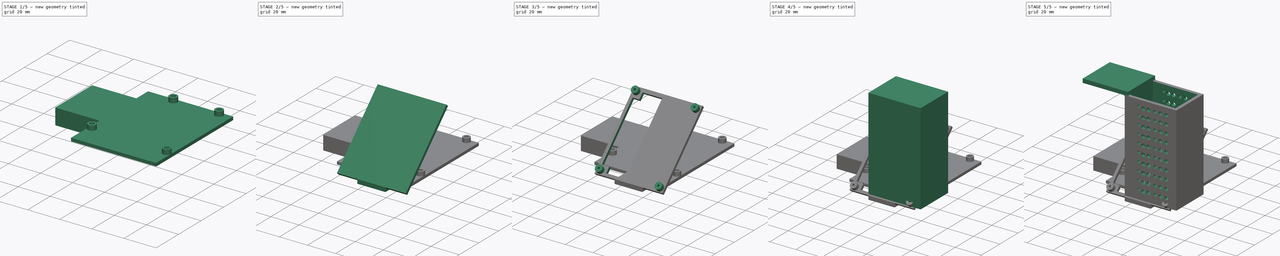
[diagram: build sequence overview — one tinted view per stage of 5, left to right]
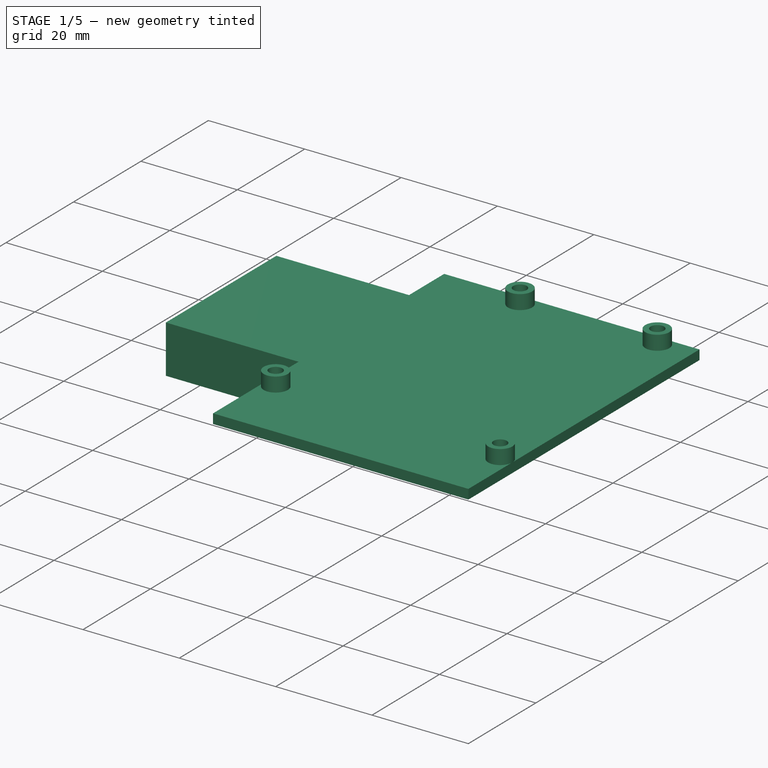
[diagram: stage 1 of 5 — iso view after this stage's code; geometry added in this stage tinted green]
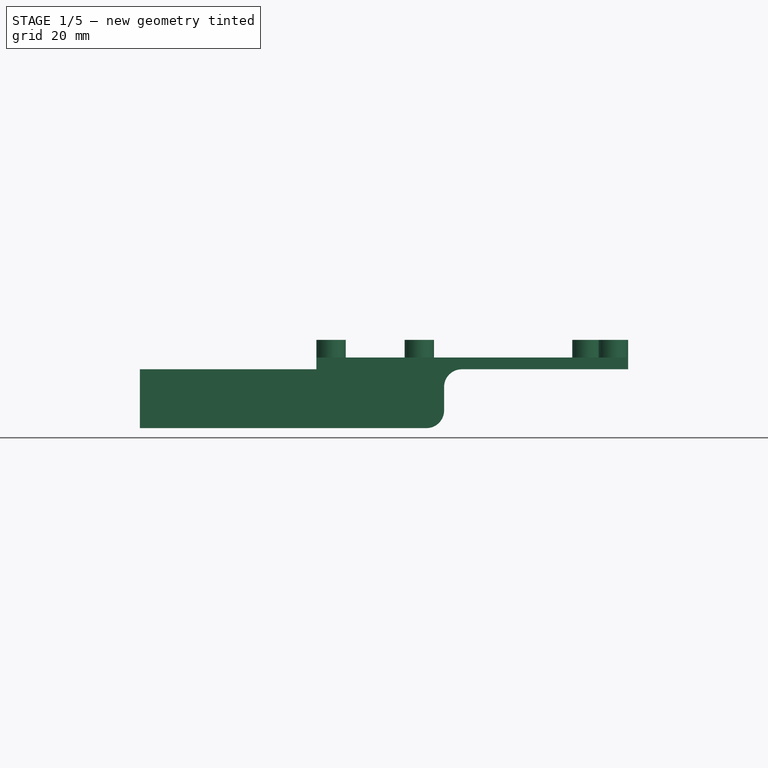
[diagram: stage 1 of 5 — front view after this stage's code; geometry added in this stage tinted green]
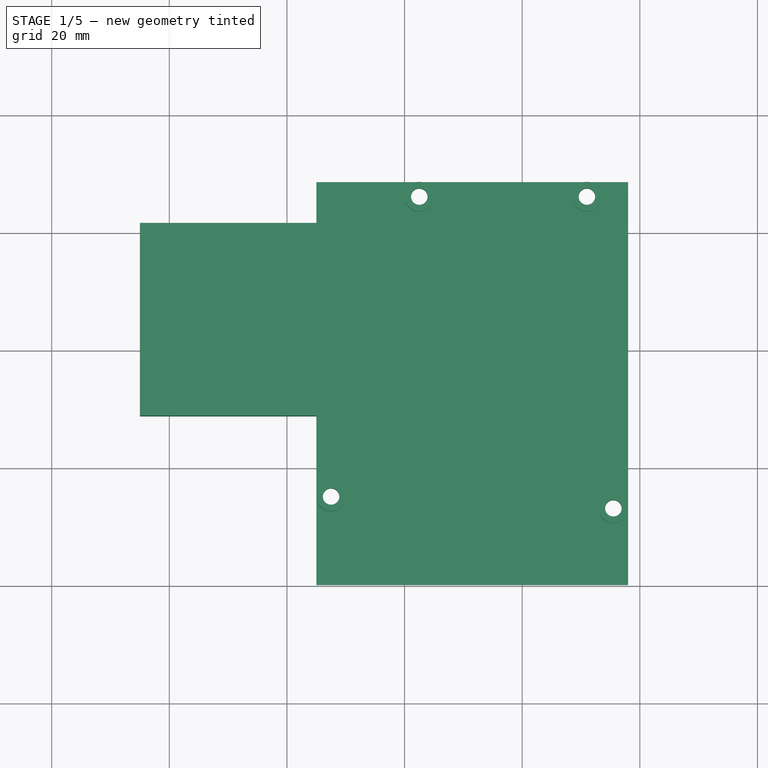
[diagram: stage 1 of 5 — top view after this stage's code; geometry added in this stage tinted green]
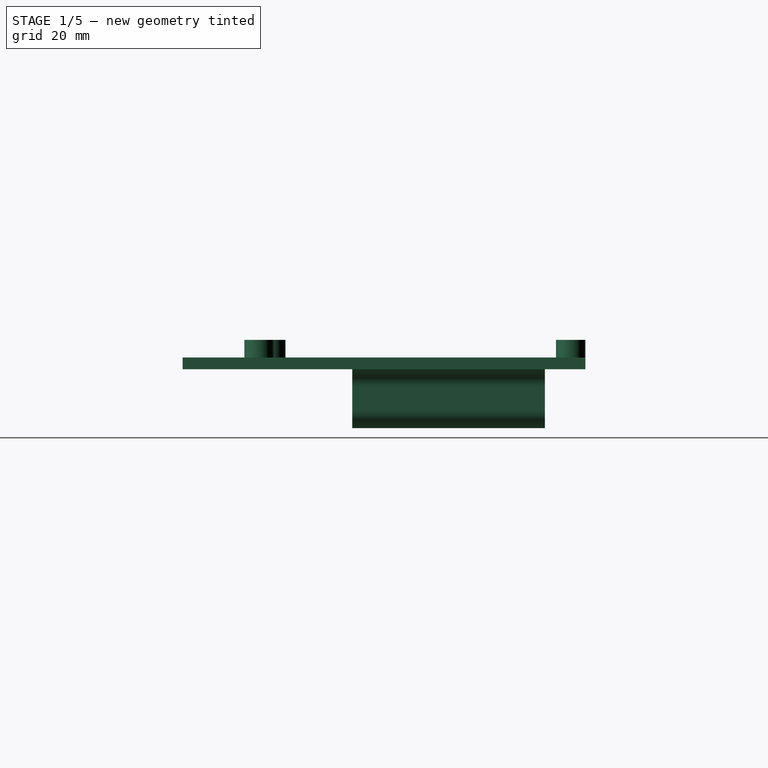
[diagram: stage 1 of 5 — right view after this stage's code; geometry added in this stage tinted green]
FCSTD DOCUMENT  (FreeCAD 1.0R39285 (Git))
Label: structure
License: All rights reserved
objects: Sketcher::SketchObject×17, PartDesign::Pad×10, PartDesign::Pocket×5, PartDesign::Fillet×5, PartDesign::Body×3, PartDesign::Plane×2, PartDesign::Mirrored×2, PartDesign::LinearPattern×1
note: 105 computed .brp shape members not serialized (recipe doc carries the construction recipe); baked Part::Feature solids carry a one-line shape summary decoded from their .brp

FEATURE [PartDesign::Body] Body001  label="escHolder"
  AllowCompound = false
  Group = -> [Sketch006,Pad003,Sketch007,DatumPlane,Sketch008,DatumPlane001,Pad004,Sketch009,Pad005,Fillet001,Sketch010,Pad006,Sketch011,Pocket002,Mirrored,Sketch012,Pocket003,Fillet002,Mirrored001]
  Origin = -> Origin001
  Placement = pos=(287,0,291) rot=(0,0,1;0rad)
  Tip = -> Mirrored001
FEATURE [Sketcher::SketchObject] Sketch014
  ArcFitTolerance = 1e-06
  AttachmentSupport = -> [XY_Plane]
  FullyConstrained = true
  MakeInternals = false
  MapMode = 5
  sketch-geometry (4):
    g0: LineSegment StartX=18 StartY=0 StartZ=0 EndX=18 EndY=68.5 EndZ=0
    g1: LineSegment StartX=18 StartY=68.5 StartZ=0 EndX=-35 EndY=68.5 EndZ=0
    g2: LineSegment StartX=-35 StartY=68.5 StartZ=0 EndX=-35 EndY=0 EndZ=0
    g3: LineSegment StartX=-35 StartY=0 StartZ=0 EndX=18 EndY=0 EndZ=0
  constraints (12):
    c: Coincident(g0,g1)
    c: Coincident(g1,g2)
    c: Coincident(g2,g3)
    c: Coincident(g3,g0)
    c: Vertical(g0)
    c: Vertical(g2)
    c: Horizontal(g1)
    c: Horizontal(g3)
    c: Distance(g0,g2) = 53
    c: Distance(g1,g3) = 68.5
    c: PointOnObject(g0,g-1)
    c: Distance(g2,g-3) = 15
FEATURE [PartDesign::Pad] Pad008
  Direction = (0,0,1)
  Length = 2
  Length2 = 10
  Profile = -> Sketch014
  ReferenceAxis = -> Sketch014 [N_Axis]
  Refine = true
  Suppressed = false
  Type = 0
FEATURE [Sketcher::SketchObject] Sketch015
  ArcFitTolerance = 1e-06
  AttachmentSupport = -> [Pad008]
  FullyConstrained = true
  MakeInternals = false
  MapMode = 5
  Placement = pos=(0,0,2) rot=(0,0,1;0rad)
  sketch-geometry (8):
    g0: GeomPoint X=15.5 Y=13 Z=0
    g1: GeomPoint X=-32.5 Y=15 Z=0
    g2: GeomPoint X=11 Y=66 Z=0
    g3: GeomPoint X=-17.5 Y=66 Z=0
    g4: Circle CenterX=-32.5 CenterY=15 CenterZ=0 NormalX=0 NormalY=0 NormalZ=1 AngleXU=0 Radius=2.5
    g5: Circle CenterX=-17.5 CenterY=66 CenterZ=0 NormalX=0 NormalY=0 NormalZ=1 AngleXU=0 Radius=2.5
    g6: Circle CenterX=11 CenterY=66 CenterZ=0 NormalX=0 NormalY=0 NormalZ=1 AngleXU=0 Radius=2.5
    g7: Circle CenterX=15.5 CenterY=13 CenterZ=0 NormalX=0 NormalY=0 NormalZ=1 AngleXU=0 Radius=2.5
  constraints (16):
    c: Distance(g0,g-5) = 13
    c: Distance(g0,g-3) = 2.5
    c: Distance(g1,g-5) = 15
    c: Distance(g1,g-4) = 2.5
    c: Distance(g2,g-3) = 7
    c: Distance(g2,g-6) = 2.5
    c: Distance(g3,g-6) = 2.5
    c: Distance(g3,g-4) = 17.5
    c: Coincident(g4,g1)
    c: Diameter(g4) = 5
    c: Coincident(g5,g3)
    c: Coincident(g6,g2)
    c: Coincident(g7,g0)
    c: Equal(g4,g5)
    c: Equal(g5,g6)
    c: Equal(g6,g7)
FEATURE [PartDesign::Pad] Pad009
  BaseFeature = -> Pad008
  Direction = (0,0,1)
  Length = 3
  Length2 = 10
  Profile = -> Sketch015
  ReferenceAxis = -> Sketch015 [N_Axis]
  Refine = true
  Suppressed = false
  Type = 0
FEATURE [Sketcher::SketchObject] Sketch016
  ArcFitTolerance = 1e-06
  AttachmentSupport = -> [Pad009]
  ExternalGeometry = -> [Pad009]
  FullyConstrained = true
  MakeInternals = false
  MapMode = 5
  Placement = pos=(0,0,5) rot=(0,0,1;0rad)
  sketch-geometry (4):
    g0: Circle CenterX=-32.5 CenterY=15 CenterZ=0 NormalX=0 NormalY=0 NormalZ=1 AngleXU=0 Radius=1.4
    g1: Circle CenterX=15.5 CenterY=13 CenterZ=0 NormalX=0 NormalY=0 NormalZ=1 AngleXU=0 Radius=1.4
    g2: Circle CenterX=11 CenterY=66 CenterZ=0 NormalX=0 NormalY=0 NormalZ=1 AngleXU=0 Radius=1.4
    g3: Circle CenterX=-17.5 CenterY=66 CenterZ=0 NormalX=0 NormalY=0 NormalZ=1 AngleXU=0 Radius=1.4
  constraints (8):
    c: Diameter(g0) = 2.8
    c: Coincident(g0,g-6)
    c: Coincident(g1,g-3)
    c: Coincident(g2,g-4)
    c: Coincident(g3,g-5)
    c: Equal(g0,g1)
    c: Equal(g1,g2)
    c: Equal(g2,g3)
FEATURE [PartDesign::Pocket] Pocket004
  BaseFeature = -> Pad009
  Direction = (0,0,-1)
  Length = 5
  Length2 = 5
  Profile = -> Sketch016
  ReferenceAxis = -> Sketch016 [N_Axis]
  Refine = true
  Suppressed = false
  Type = 1
FEATURE [Sketcher::SketchObject] Sketch017
  ArcFitTolerance = 1e-06
  AttachmentSupport = -> [Pocket004]
  ExternalGeometry = -> [Pocket004]
  FullyConstrained = false
  MakeInternals = false
  MapMode = 5
  Placement = pos=(0,0,0) rot=(1,0,0;3.14159rad)
  sketch-geometry (4):
    g0: LineSegment StartX=-65 StartY=-28.8527 StartZ=0 EndX=-65 EndY=-61.6023 EndZ=0
    g1: LineSegment StartX=-65 StartY=-61.6023 StartZ=0 EndX=-13.2809 EndY=-61.6023 EndZ=0
    g2: LineSegment StartX=-13.2809 StartY=-61.6023 StartZ=0 EndX=-13.2809 EndY=-28.8527 EndZ=0
    g3: LineSegment StartX=-13.2809 StartY=-28.8527 StartZ=0 EndX=-65 EndY=-28.8527 EndZ=0
  constraints (9):
    c: Coincident(g0,g1)
    c: Coincident(g1,g2)
    c: Coincident(g2,g3)
    c: Coincident(g3,g0)
    c: Vertical(g0)
    c: Vertical(g2)
    c: Horizontal(g1)
    c: Horizontal(g3)
    c: Distance(g0,g-5) = 30
FEATURE [PartDesign::Pad] Pad010
  BaseFeature = -> Pocket004
  Direction = (0,0,-1)
  Length = 10
  Length2 = 10
  Profile = -> Sketch017
  ReferenceAxis = -> Sketch017 [N_Axis]
  Refine = true
  Suppressed = false
  Type = 0
FEATURE [PartDesign::Fillet] Fillet003
  Base = -> Pad010 [Edge16,Edge38]
  BaseFeature = -> Pad010
  Radius = 3
  Refine = true
  SupportTransform = false
  Suppressed = false
  UseAllEdges = false
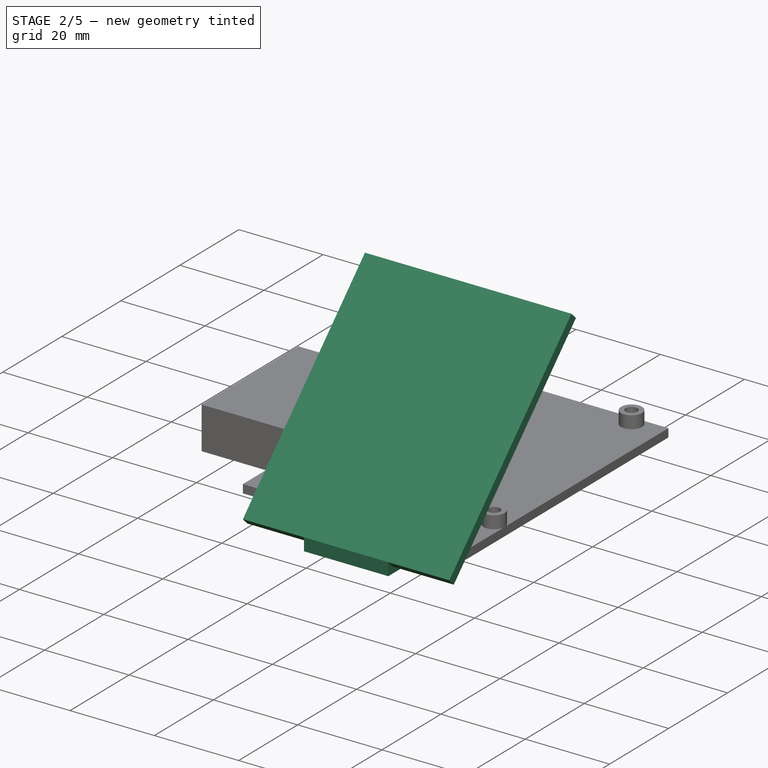
[diagram: stage 2 of 5 — iso view after this stage's code; geometry added in this stage tinted green]
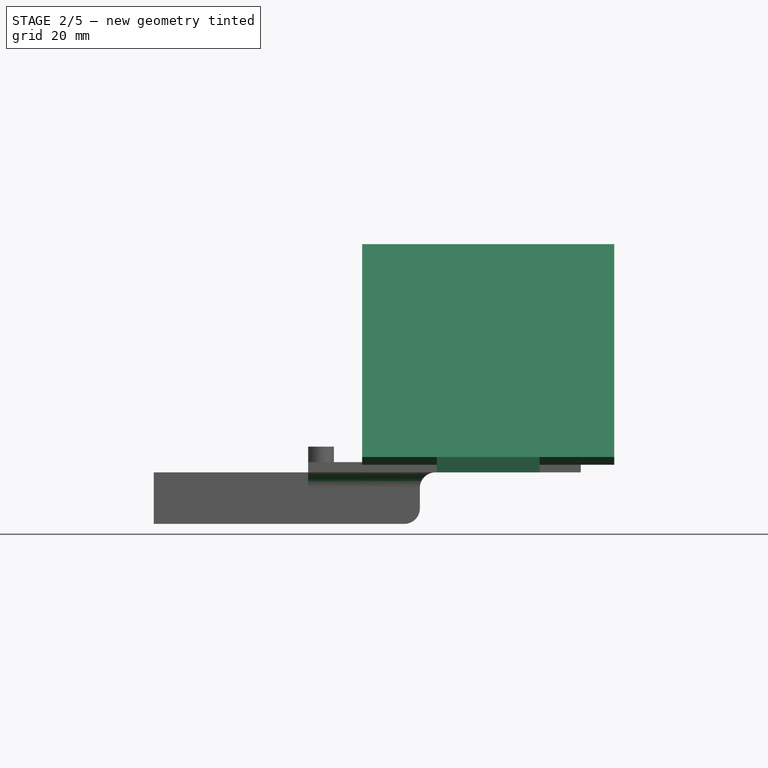
[diagram: stage 2 of 5 — front view after this stage's code; geometry added in this stage tinted green]
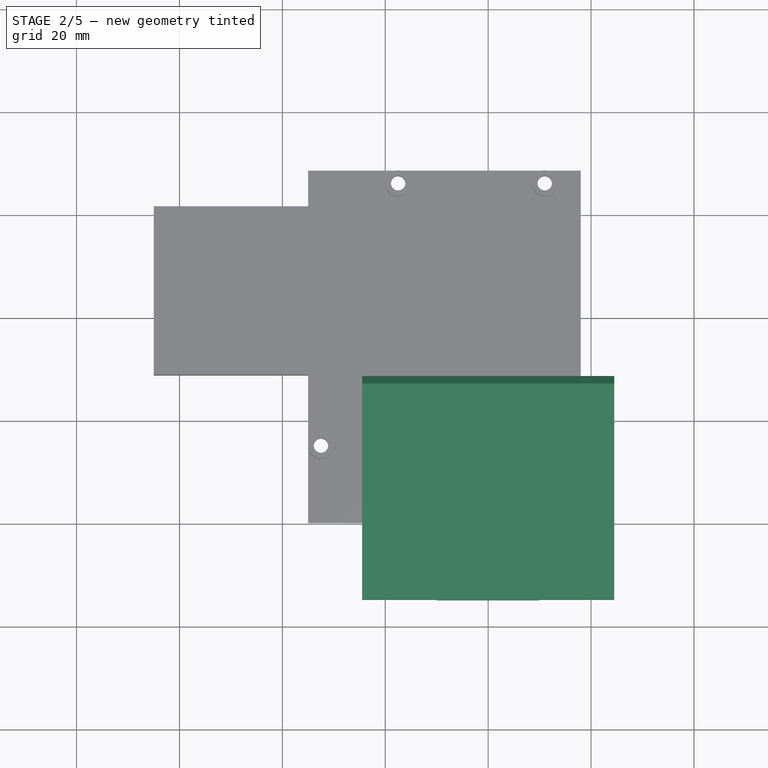
[diagram: stage 2 of 5 — top view after this stage's code; geometry added in this stage tinted green]
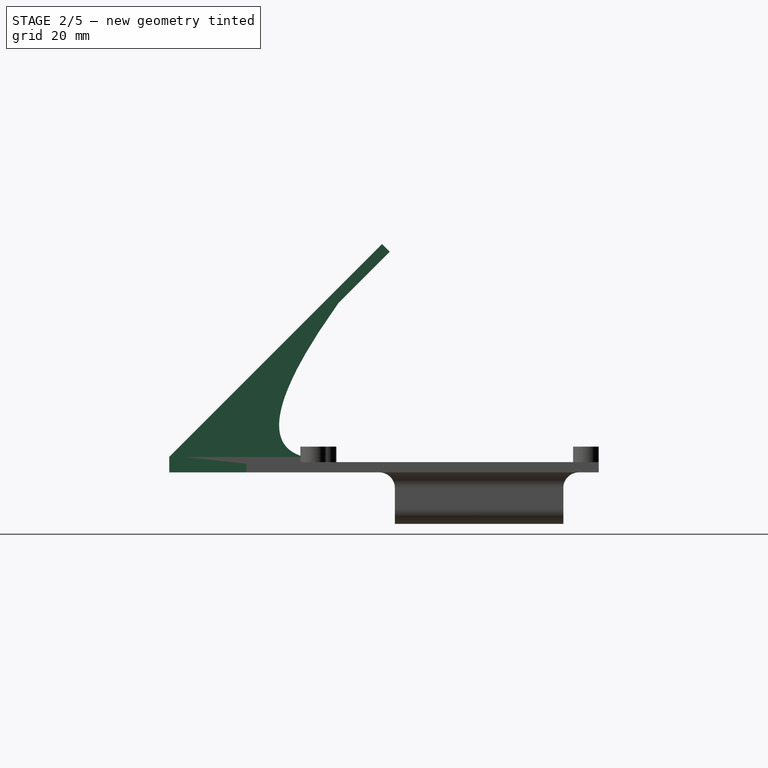
[diagram: stage 2 of 5 — right view after this stage's code; geometry added in this stage tinted green]
FEATURE [PartDesign::Body] Body  label="batteryCage"
  AllowCompound = false
  Group = -> [Sketch,Pad,Sketch001,Pad001,Sketch002,Pocket,Sketch003,Pad002,Fillet,Sketch004,Pocket001,Sketch005,LinearPattern]
  Origin = -> Origin
  Tip = -> LinearPattern
FEATURE [Sketcher::SketchObject] Sketch006
  ArcFitTolerance = 1e-06
  AttachmentSupport = -> [XY_Plane001]
  FullyConstrained = true
  MakeInternals = false
  MapMode = 5
  sketch-geometry (5):
    g0: LineSegment StartX=-10 StartY=-15 StartZ=0 EndX=10 EndY=-15 EndZ=0
    g1: LineSegment StartX=10 StartY=-15 StartZ=0 EndX=10 EndY=15 EndZ=0
    g2: LineSegment StartX=10 StartY=15 StartZ=0 EndX=-10 EndY=15 EndZ=0
    g3: LineSegment StartX=-10 StartY=15 StartZ=0 EndX=-10 EndY=-15 EndZ=0
    g4: GeomPoint [constr] X=0 Y=0 Z=0
  constraints (12):
    c: Coincident(g0,g1)
    c: Coincident(g1,g2)
    c: Coincident(g2,g3)
    c: Coincident(g3,g0)
    c: Horizontal(g0)
    c: Horizontal(g2)
    c: Vertical(g1)
    c: Vertical(g3)
    c: Symmetric(g2,g0,g4)
    c: Distance(g1,g3) = 20
    c: Distance(g0,g2) = 30
    c: Coincident(g4,g-1)
FEATURE [PartDesign::Pad] Pad003
  Direction = (0,0,1)
  Length = 3
  Length2 = 10
  Profile = -> Sketch006
  ReferenceAxis = -> Sketch006 [N_Axis]
  Refine = true
  Suppressed = false
  Type = 0
FEATURE [Sketcher::SketchObject] Sketch007
  ArcFitTolerance = 1e-06
  AttachmentSupport = -> [Pad003]
  ExternalGeometry = -> [Pad003]
  FullyConstrained = true
  MakeInternals = false
  MapMode = 5
  Placement = pos=(0,0,3) rot=(0,0,1;0rad)
  sketch-geometry (1):
    g0: LineSegment StartX=-10 StartY=-12 StartZ=0 EndX=10 EndY=-12 EndZ=0
  constraints (4):
    c: PointOnObject(g0,g-3)
    c: PointOnObject(g0,g-4)
    c: Horizontal(g0)
    c: Distance(g-5,g0) = 3
FEATURE [PartDesign::Plane] DatumPlane
  AttachmentSupport = -> [Pad003,Sketch007]
  Length = 63.2417
  MapMode = 13
  Placement = pos=(-3.33333,-14,1) rot=(1,0,0;0.785398rad)
  ResizeMode = 0
  Width = 100.913
FEATURE [Sketcher::SketchObject] Sketch008
  ArcFitTolerance = 1e-06
  AttachmentSupport = -> [DatumPlane]
  ExternalGeometry = -> [Pad003]
  FullyConstrained = true
  MakeInternals = false
  MapMode = 5
  Placement = pos=(-3.33333,-14,1) rot=(1,0,0;0.785398rad)
  sketch-geometry (4):
    g0: LineSegment StartX=-21.1667 StartY=0.707107 StartZ=0 EndX=27.8333 EndY=0.707107 EndZ=0
    g1: LineSegment StartX=27.8333 StartY=0.707107 StartZ=0 EndX=27.8333 EndY=59.2071 EndZ=0
    g2: LineSegment StartX=27.8333 StartY=59.2071 StartZ=0 EndX=-21.1667 EndY=59.2071 EndZ=0
    g3: LineSegment StartX=-21.1667 StartY=59.2071 StartZ=0 EndX=-21.1667 EndY=0.707107 EndZ=0
  constraints (12):
    c: Coincident(g0,g1)
    c: Coincident(g1,g2)
    c: Coincident(g2,g3)
    c: Coincident(g3,g0)
    c: Horizontal(g0)
    c: Horizontal(g2)
    c: Vertical(g1)
    c: Vertical(g3)
    c: Distance(g1,g3) = 49
    c: Distance(g0,g2) = 58.5
    c: PointOnObject(g-3,g0)
    c: Distance(g0,g-3) = 14.5
FEATURE [PartDesign::Plane] DatumPlane001
  AttachmentSupport = -> [DatumPlane,Pad003]
  Length = 63.2417
  MapMode = 53
  Placement = pos=(-3.33333,-15.5,2.5) rot=(1,0,0;0.785398rad)
  ResizeMode = 0
  Width = 100.913
FEATURE [PartDesign::Pad] Pad004
  BaseFeature = -> Pad003
  Direction = (0,-0.707107,0.707107)
  Length = 10
  Length2 = 10
  Profile = -> Sketch008
  ReferenceAxis = -> Sketch008 [N_Axis]
  Refine = true
  Suppressed = false
  Type = 3
  UpToFace = -> DatumPlane001 [Plane]
FEATURE [Sketcher::SketchObject] Sketch009
  ArcFitTolerance = 1e-06
  AttachmentSupport = -> [YZ_Plane001]
  ExternalGeometry = -> [DatumPlane,Pad004]
  FullyConstrained = true
  MakeInternals = false
  MapMode = 5
  Placement = pos=(0,0,0) rot=(0.57735,0.57735,0.57735;2.0944rad)
  sketch-geometry (8):
    g0: LineSegment StartX=-12 StartY=3 StartZ=0 EndX=11.34 EndY=3 EndZ=0
    g1: LineSegment StartX=-12 StartY=3 StartZ=0 EndX=17.847 EndY=32.847 EndZ=0
    g2: Circle [constr] CenterX=17.847 CenterY=32.847 CenterZ=0 NormalX=0 NormalY=0 NormalZ=1 AngleXU=0 Radius=1
    g3: Circle [constr] CenterX=-1.19 CenterY=6.11 CenterZ=0 NormalX=0 NormalY=0 NormalZ=1 AngleXU=0 Radius=1
    g4: Circle [constr] CenterX=11.34 CenterY=3 CenterZ=0 NormalX=0 NormalY=0 NormalZ=1 AngleXU=0 Radius=1
    g5: BSplineCurve PolesCount=3 KnotsCount=2 Degree=2 IsPeriodic=0
    g6: GeomPoint [constr] X=17.847 Y=32.847 Z=0
    g7: GeomPoint [constr] X=11.34 Y=3 Z=0
  constraints (18):
    c: Horizontal(g0)
    c: Coincident(g1,g0)
    c: PointOnObject(g1,g-3)
    c: Coincident(g0,g-4)
    c: Weight(g2) = 1
    c: Equal(g2,g3)
    c: Equal(g2,g4)
    c: InternalAlignment(g2,g5)
    c: InternalAlignment(g3,g5)
    c: InternalAlignment(g4,g5)
    c: InternalAlignment(g6,g5)
    c: InternalAlignment(g7,g5)
    c: Coincident(g2,g1)
    c: Coincident(g4,g0)
    c: DistanceX(g0,g0) = 23.34
    c: Distance(g1,g1) = 42.21
    c: DistanceX(g0,g3) = 10.81
    c: DistanceY(g0,g3) = 3.11
FEATURE [PartDesign::Pad] Pad005
  BaseFeature = -> Pad004
  Direction = (1,0,0)
  Length = 2
  Length2 = 10
  Midplane = true
  Profile = -> Sketch009
  ReferenceAxis = -> Sketch009 [N_Axis]
  Refine = true
  Suppressed = false
  Type = 0
FEATURE [PartDesign::Fillet] Fillet004
  Base = -> Fillet003 [Edge7,Edge2]
  BaseFeature = -> Fillet003
  Radius = 3
  Refine = true
  SupportTransform = false
  Suppressed = false
  UseAllEdges = false
FEATURE [PartDesign::Body] Body002  label="arduinoSupport"
  AllowCompound = false
  Group = -> [Sketch014,Pad008,Sketch015,Pad009,Sketch016,Pocket004,Sketch017,Pad010,Fillet003,Fillet004]
  Origin = -> Origin002
  Placement = pos=(0,98,-109) rot=(0,0,1;0rad)
  Tip = -> Fillet004
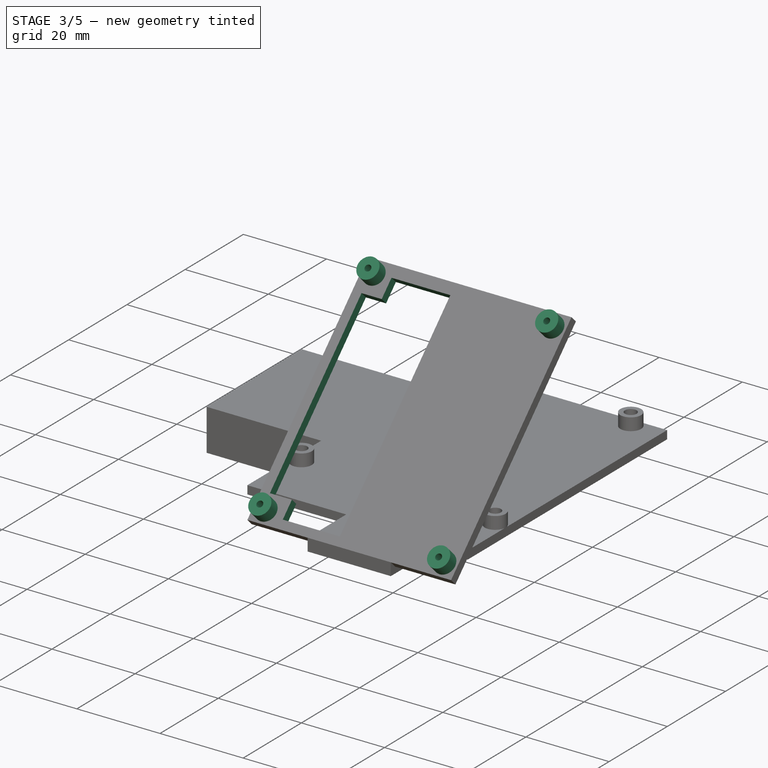
[diagram: stage 3 of 5 — iso view after this stage's code; geometry added in this stage tinted green]
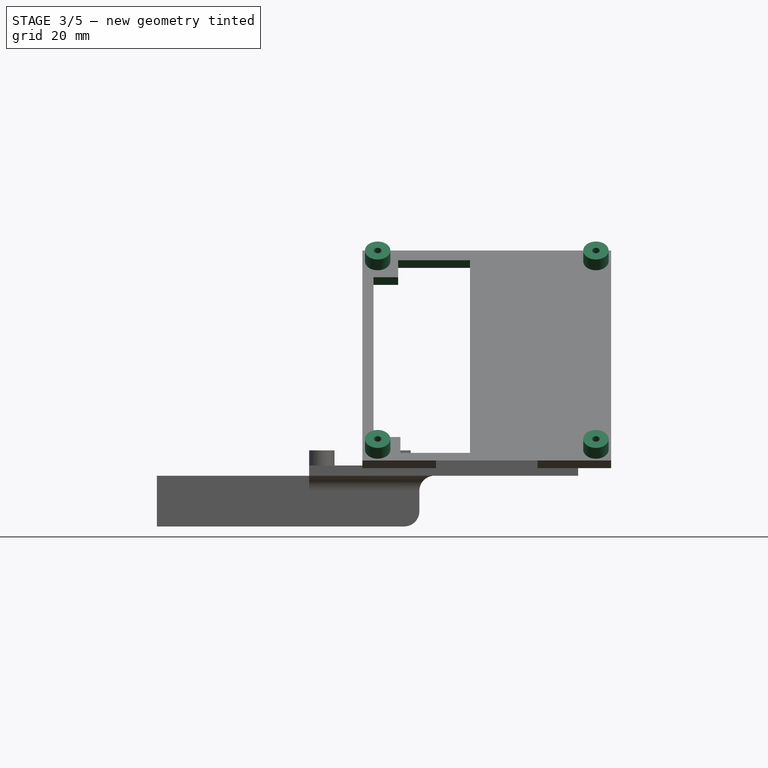
[diagram: stage 3 of 5 — front view after this stage's code; geometry added in this stage tinted green]
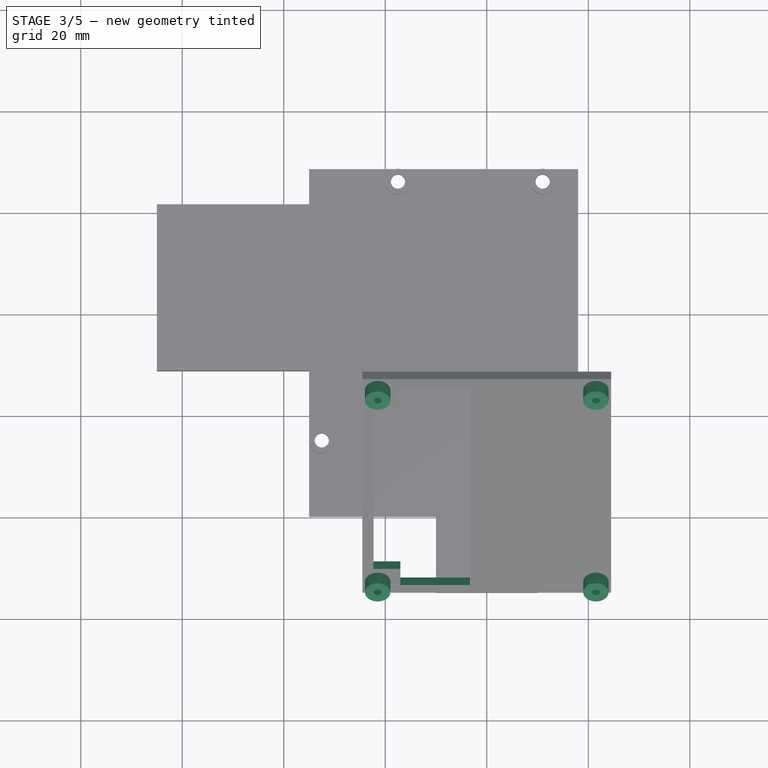
[diagram: stage 3 of 5 — top view after this stage's code; geometry added in this stage tinted green]
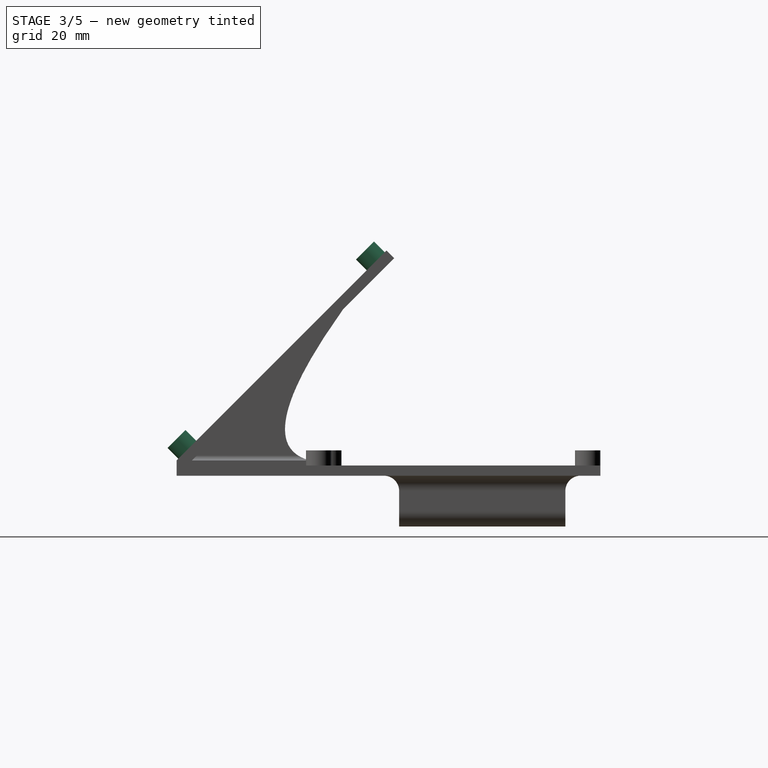
[diagram: stage 3 of 5 — right view after this stage's code; geometry added in this stage tinted green]
FEATURE [PartDesign::Fillet] Fillet001
  Base = -> Pad005 [Edge35,Edge33]
  BaseFeature = -> Pad005
  Radius = 1
  Refine = true
  SupportTransform = false
  Suppressed = false
  UseAllEdges = false
FEATURE [Sketcher::SketchObject] Sketch010
  ArcFitTolerance = 1e-06
  AttachmentSupport = -> [Fillet001]
  ExternalGeometry = -> [Fillet001]
  FullyConstrained = true
  MakeInternals = false
  MapMode = 5
  Placement = pos=(0,-9,9) rot=(1,0,0;0.785398rad)
  sketch-geometry (4):
    g0: GeomPoint X=-21.5 Y=-5.48528 Z=0
    g1: Circle CenterX=-21.5 CenterY=-5.48528 CenterZ=0 NormalX=0 NormalY=0 NormalZ=1 AngleXU=0 Radius=2.5
    g2: GeomPoint X=-21.5 Y=47.0147 Z=0
    g3: Circle CenterX=-21.5 CenterY=47.0147 CenterZ=0 NormalX=0 NormalY=0 NormalZ=1 AngleXU=0 Radius=2.5
  constraints (8):
    c: Distance(g0,g-6) = 3
    c: Distance(g0,g-4) = 3
    c: Diameter(g1) = 5
    c: Coincident(g1,g0)
    c: Distance(g2,g-3) = 3
    c: Distance(g2,g-4) = 3
    c: Diameter(g3) = 5
    c: Coincident(g3,g2)
FEATURE [PartDesign::Pad] Pad006
  BaseFeature = -> Fillet001
  Direction = (0,-0.707107,0.707107)
  Length = 3
  Length2 = 10
  Profile = -> Sketch010
  ReferenceAxis = -> Sketch010 [N_Axis]
  Refine = true
  Suppressed = false
  Type = 0
FEATURE [Sketcher::SketchObject] Sketch011
  ArcFitTolerance = 1e-06
  AttachmentSupport = -> [Pad006]
  ExternalGeometry = -> [Pad006]
  FullyConstrained = true
  MakeInternals = false
  MapMode = 5
  Placement = pos=(-1.26e-14,-11.1213,11.1213) rot=(1,0,0;0.785398rad)
  sketch-geometry (2):
    g0: Circle CenterX=-21.5 CenterY=-5.48528 CenterZ=0 NormalX=0 NormalY=0 NormalZ=1 AngleXU=0 Radius=0.75
    g1: Circle CenterX=-21.5 CenterY=47.0147 CenterZ=0 NormalX=0 NormalY=0 NormalZ=1 AngleXU=0 Radius=0.75
  constraints (4):
    c: Coincident(g0,g-3)
    c: Diameter(g0) = 1.5
    c: Diameter(g1) = 1.5
    c: Coincident(g1,g-4)
FEATURE [PartDesign::Pocket] Pocket002
  BaseFeature = -> Pad006
  Direction = (0,0.707107,-0.707107)
  Length = 5
  Length2 = 5
  Profile = -> Sketch011
  ReferenceAxis = -> Sketch011 [N_Axis]
  Refine = true
  Suppressed = false
  Type = 1
FEATURE [PartDesign::Mirrored] Mirrored
  BaseFeature = -> Pocket002
  MirrorPlane = -> Sketch010 [V_Axis]
  Originals = -> [Pad006,Pocket002]
  Refine = true
  Suppressed = false
  TransformMode = 0
FEATURE [Sketcher::SketchObject] Sketch012
  ArcFitTolerance = 1e-06
  AttachmentSupport = -> [Mirrored]
  FullyConstrained = false
  MakeInternals = false
  MapMode = 5
  Placement = pos=(0,-9,9) rot=(1,0,0;0.785398rad)
  sketch-geometry (8):
    g0: LineSegment StartX=-3.30589 StartY=47.3093 StartZ=0 EndX=-3.30589 EndY=-6.37289 EndZ=0
    g1: LineSegment StartX=-3.30589 StartY=-6.37289 StartZ=0 EndX=-17.0235 EndY=-6.37289 EndZ=0
    g2: LineSegment StartX=-17.0235 StartY=-6.37289 StartZ=0 EndX=-17.0235 EndY=-1.94438 EndZ=0
    g3: LineSegment StartX=-17.0235 StartY=-1.94438 StartZ=0 EndX=-22.3161 EndY=-1.94438 EndZ=0
    g4: LineSegment StartX=-22.3161 StartY=-1.94438 StartZ=0 EndX=-22.3161 EndY=42.5568 EndZ=0
    g5: LineSegment StartX=-22.3161 StartY=42.5568 StartZ=0 EndX=-17.4555 EndY=42.5568 EndZ=0
    g6: LineSegment StartX=-17.4555 StartY=42.5568 StartZ=0 EndX=-17.4555 EndY=47.3093 EndZ=0
    g7: LineSegment StartX=-17.4555 StartY=47.3093 StartZ=0 EndX=-3.30589 EndY=47.3093 EndZ=0
  constraints (16):
    c: Vertical(g0)
    c: Coincident(g0,g1)
    c: Horizontal(g1)
    c: Coincident(g1,g2)
    c: Vertical(g2)
    c: Coincident(g2,g3)
    c: Horizontal(g3)
    c: Coincident(g3,g4)
    c: Vertical(g4)
    c: Coincident(g4,g5)
    c: Horizontal(g5)
    c: Coincident(g5,g6)
    c: Vertical(g6)
    c: Coincident(g6,g7)
    c: Coincident(g7,g0)
    c: Horizontal(g7)
FEATURE [PartDesign::Pocket] Pocket003
  BaseFeature = -> Mirrored
  Direction = (0,0.707107,-0.707107)
  Length = 5
  Length2 = 5
  Profile = -> Sketch012
  ReferenceAxis = -> Sketch012 [N_Axis]
  Refine = true
  Suppressed = false
  Type = 2
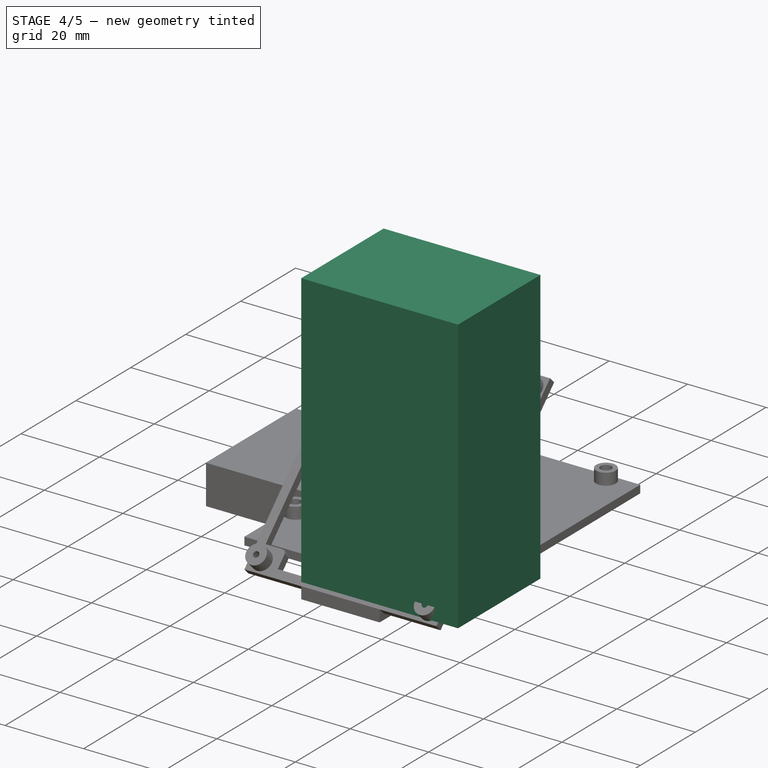
[diagram: stage 4 of 5 — iso view after this stage's code; geometry added in this stage tinted green]
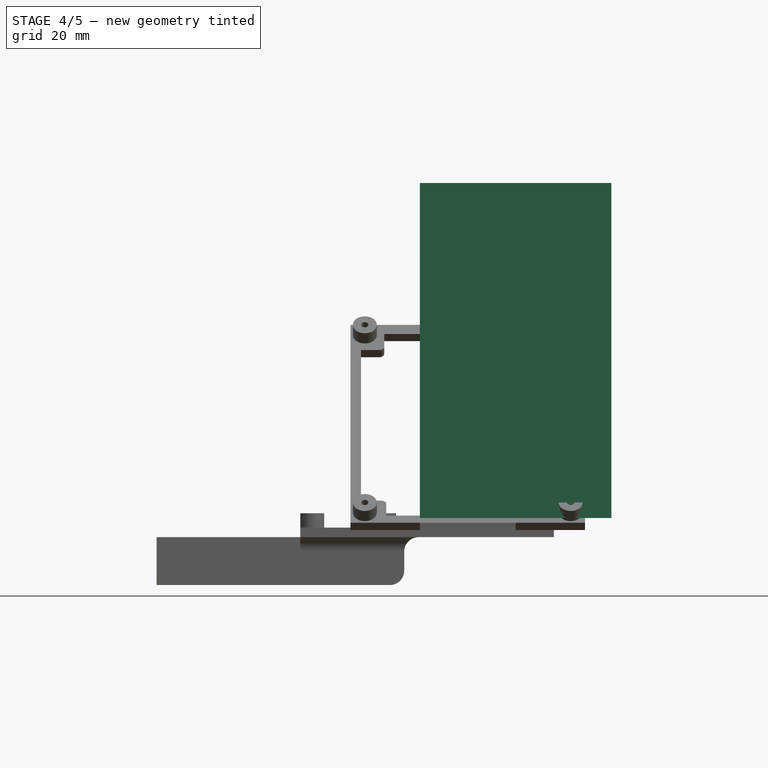
[diagram: stage 4 of 5 — front view after this stage's code; geometry added in this stage tinted green]
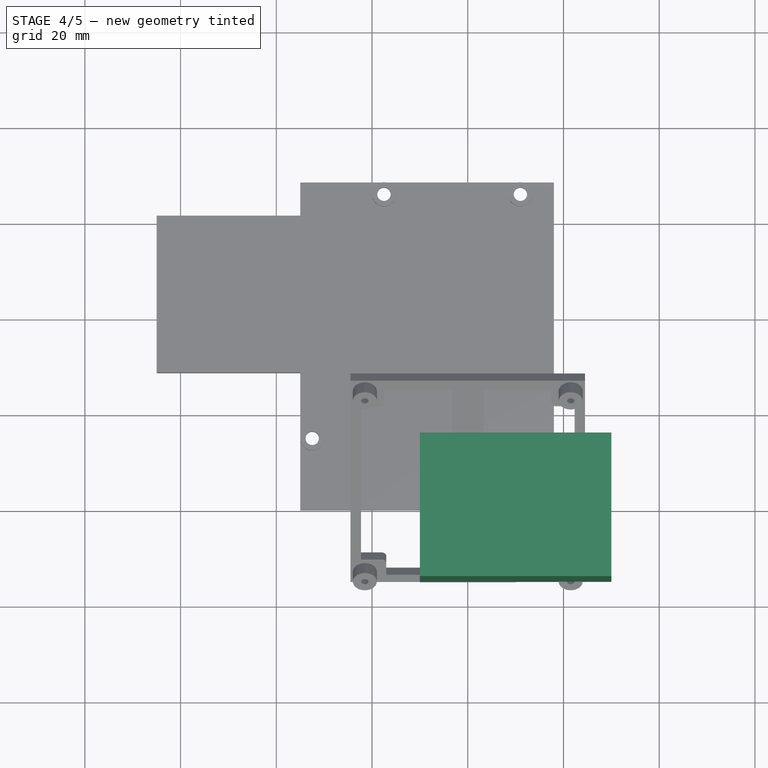
[diagram: stage 4 of 5 — top view after this stage's code; geometry added in this stage tinted green]
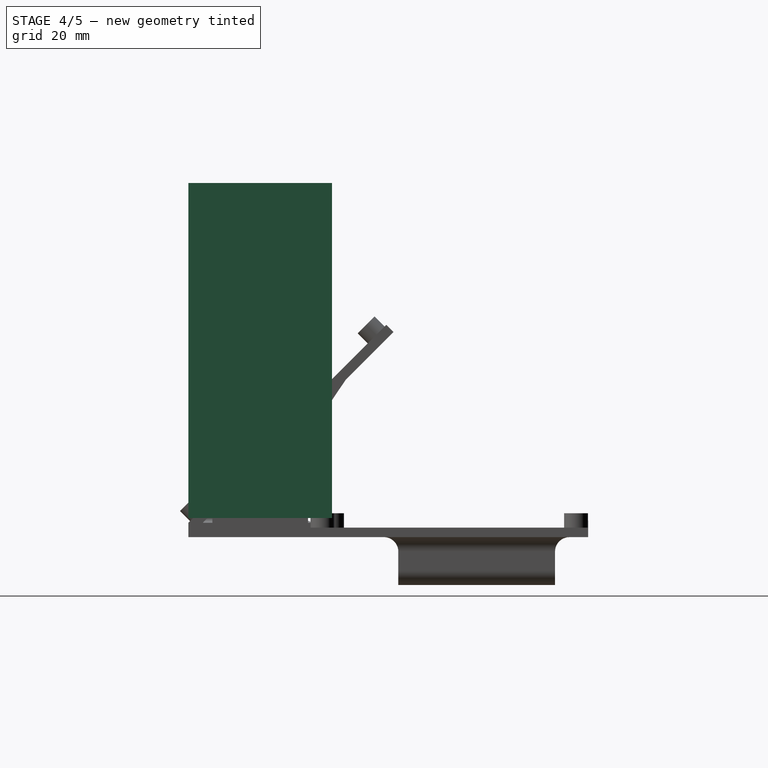
[diagram: stage 4 of 5 — right view after this stage's code; geometry added in this stage tinted green]
FEATURE [Sketcher::SketchObject] Sketch
  ArcFitTolerance = 1e-06
  AttachmentSupport = -> [XY_Plane]
  FullyConstrained = true
  MakeInternals = false
  MapMode = 5
  sketch-geometry (5):
    g0: LineSegment StartX=-10 StartY=-10 StartZ=0 EndX=10 EndY=-10 EndZ=0
    g1: LineSegment StartX=10 StartY=-10 StartZ=0 EndX=10 EndY=10 EndZ=0
    g2: LineSegment StartX=10 StartY=10 StartZ=0 EndX=-10 EndY=10 EndZ=0
    g3: LineSegment StartX=-10 StartY=10 StartZ=0 EndX=-10 EndY=-10 EndZ=0
    g4: GeomPoint [constr] X=0 Y=0 Z=0
  constraints (12):
    c: Coincident(g0,g1)
    c: Coincident(g1,g2)
    c: Coincident(g2,g3)
    c: Coincident(g3,g0)
    c: Horizontal(g0)
    c: Horizontal(g2)
    c: Vertical(g1)
    c: Vertical(g3)
    c: Symmetric(g2,g0,g4)
    c: Distance(g1,g3) = 20
    c: Distance(g0,g2) = 20
    c: Coincident(g4,g-1)
FEATURE [PartDesign::Pad] Pad
  Direction = (0,0,1)
  Length = 4
  Length2 = 10
  Profile = -> Sketch
  ReferenceAxis = -> Sketch [N_Axis]
  Refine = true
  Suppressed = false
  Type = 0
FEATURE [Sketcher::SketchObject] Sketch001
  ArcFitTolerance = 1e-06
  AttachmentSupport = -> [Pad]
  ExternalGeometry = -> [Pad]
  FullyConstrained = true
  MakeInternals = false
  MapMode = 5
  Placement = pos=(0,0,4) rot=(0,0,1;0rad)
  sketch-geometry (4):
    g0: LineSegment StartX=-10 StartY=15 StartZ=0 EndX=-10 EndY=-15 EndZ=0
    g1: LineSegment StartX=-10 StartY=-15 StartZ=0 EndX=30 EndY=-15 EndZ=0
    g2: LineSegment StartX=30 StartY=-15 StartZ=0 EndX=30 EndY=15 EndZ=0
    g3: LineSegment StartX=30 StartY=15 StartZ=0 EndX=-10 EndY=15 EndZ=0
  constraints (12):
    c: Coincident(g0,g1)
    c: Coincident(g1,g2)
    c: Coincident(g2,g3)
    c: Coincident(g3,g0)
    c: Vertical(g0)
    c: Vertical(g2)
    c: Horizontal(g1)
    c: Horizontal(g3)
    c: Distance(g-1,g3) = 15
    c: Distance(g1,g-1) = 15
    c: Distance(g0,g2) = 40
    c: PointOnObject(g-3,g0)
FEATURE [PartDesign::Pad] Pad001
  BaseFeature = -> Pad
  Direction = (0,0,1)
  Length = 70
  Length2 = 10
  Profile = -> Sketch001
  ReferenceAxis = -> Sketch001 [N_Axis]
  Refine = true
  Suppressed = false
  Type = 0
FEATURE [PartDesign::Fillet] Fillet002
  Base = -> Pocket003 [Edge65,Edge71]
  BaseFeature = -> Pocket003
  Radius = 1
  Refine = true
  SupportTransform = false
  Suppressed = false
  UseAllEdges = false
FEATURE [PartDesign::Mirrored] Mirrored001
  BaseFeature = -> Fillet002
  MirrorPlane = -> Sketch012 [V_Axis]
  Originals = -> [Pocket003,Fillet002]
  Refine = true
  Suppressed = false
  TransformMode = 0
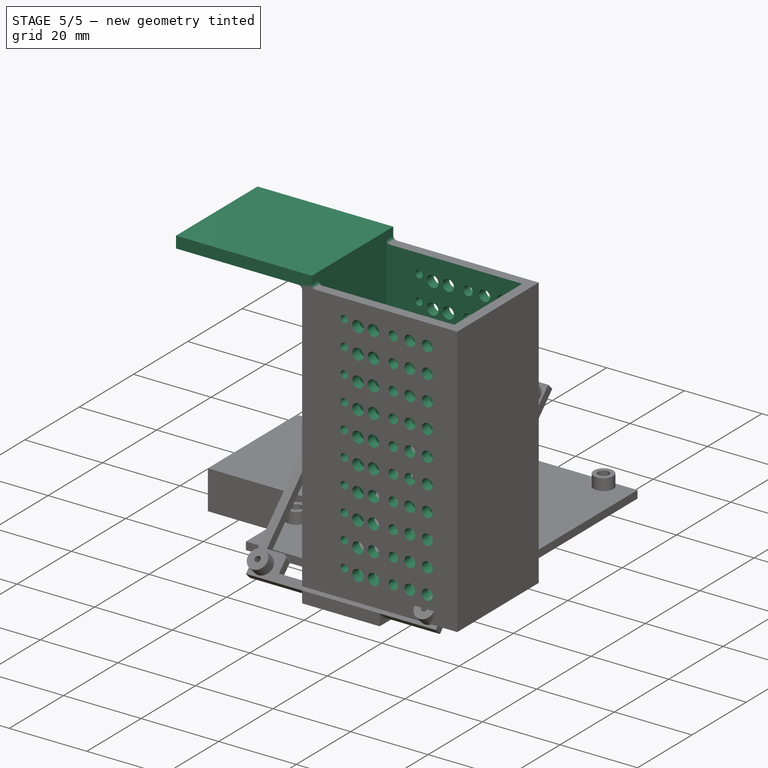
[diagram: stage 5 of 5 — iso view after this stage's code; geometry added in this stage tinted green]
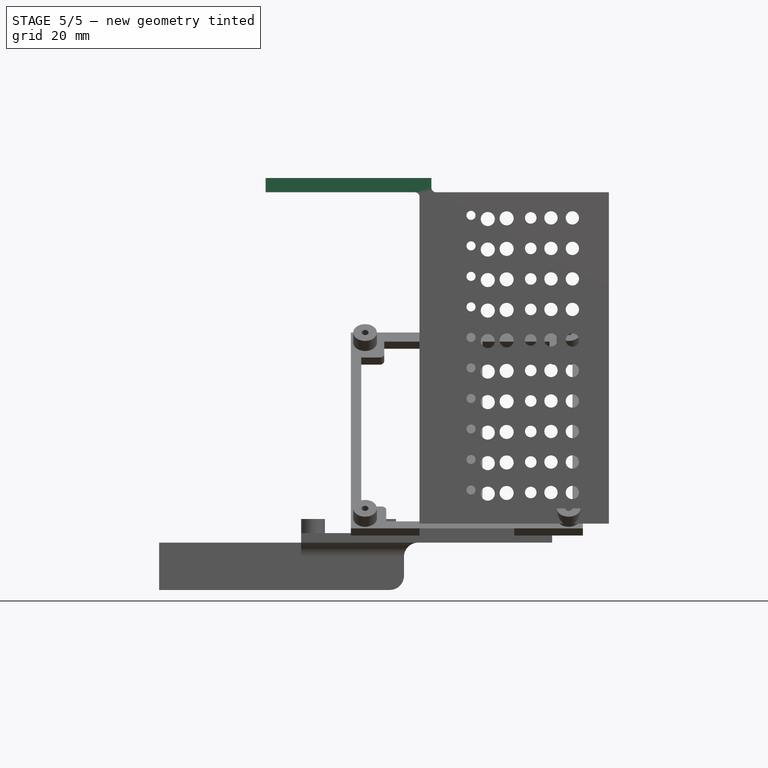
[diagram: stage 5 of 5 — front view after this stage's code; geometry added in this stage tinted green]
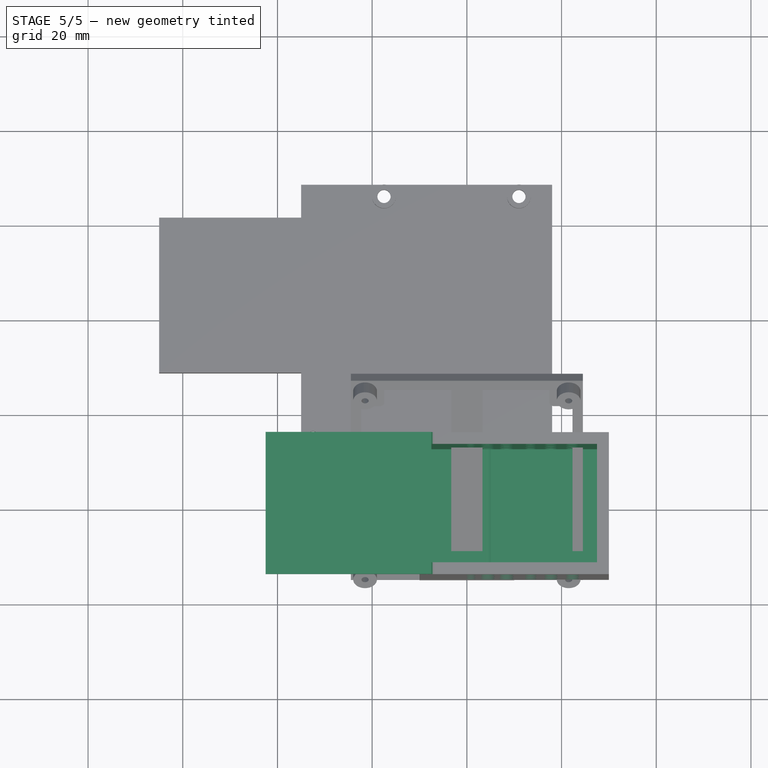
[diagram: stage 5 of 5 — top view after this stage's code; geometry added in this stage tinted green]
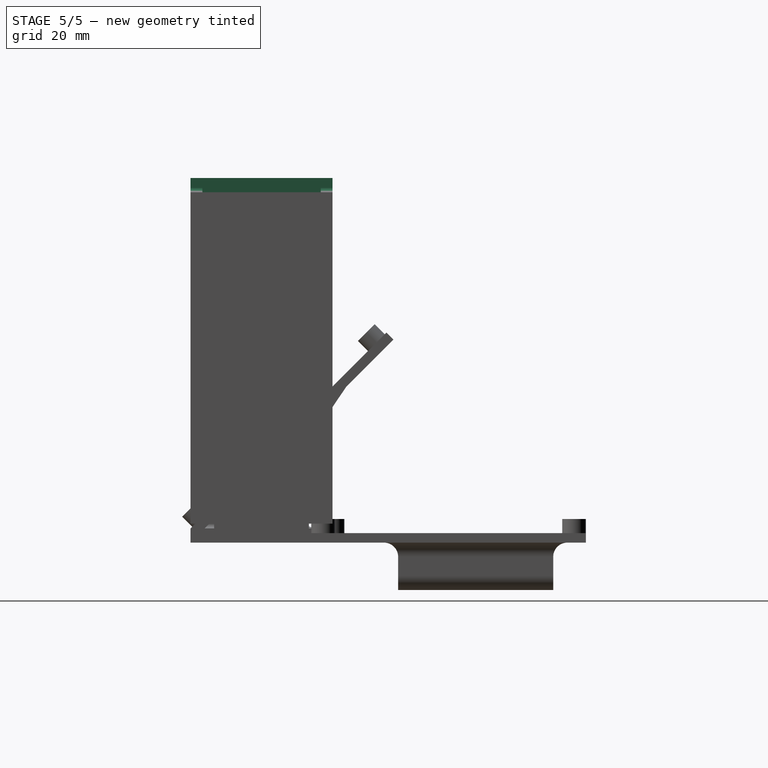
[diagram: stage 5 of 5 — right view after this stage's code; geometry added in this stage tinted green]
FEATURE [Sketcher::SketchObject] Sketch002
  ArcFitTolerance = 1e-06
  AttachmentSupport = -> [Pad001]
  ExternalGeometry = -> [Pad001]
  FullyConstrained = true
  MakeInternals = false
  MapMode = 5
  Placement = pos=(0,0,74) rot=(0,0,1;0rad)
  sketch-geometry (5):
    g0: LineSegment StartX=27.5 StartY=-12.5 StartZ=0 EndX=27.5 EndY=12.5 EndZ=0
    g1: LineSegment StartX=27.5 StartY=12.5 StartZ=0 EndX=-7.5 EndY=12.5 EndZ=0
    g2: LineSegment StartX=-7.5 StartY=12.5 StartZ=0 EndX=-7.5 EndY=-12.5 EndZ=0
    g3: LineSegment StartX=-7.5 StartY=-12.5 StartZ=0 EndX=27.5 EndY=-12.5 EndZ=0
    g4: GeomPoint [constr] X=10 Y=0 Z=0
  constraints (15):
    c: Coincident(g0,g1)
    c: Coincident(g1,g2)
    c: Coincident(g2,g3)
    c: Coincident(g3,g0)
    c: Vertical(g0)
    c: Vertical(g2)
    c: Horizontal(g1)
    c: Horizontal(g3)
    c: Symmetric(g2,g0,g4)
    c: PointOnObject(g4,g-1)
    c: DistanceX(g-6,g-6) = 40
    c: DistanceY(g-5,g-5) = 30
    c: Distance(g-5,g2) = 2.5
    c: DistanceX(g1,g1) = 35
    c: Distance(g-6,g3) = 2.5
FEATURE [PartDesign::Pocket] Pocket
  BaseFeature = -> Pad001
  Direction = (0,0,-1)
  Length = 65
  Length2 = 5
  Profile = -> Sketch002
  ReferenceAxis = -> Sketch002 [N_Axis]
  Refine = true
  Suppressed = false
  Type = 0
FEATURE [Sketcher::SketchObject] Sketch003
  ArcFitTolerance = 1e-06
  AttachmentSupport = -> [Pocket]
  ExternalGeometry = -> [Pocket]
  FullyConstrained = true
  MakeInternals = false
  MapMode = 5
  Placement = pos=(0,0,74) rot=(0,0,1;0rad)
  sketch-geometry (4):
    g0: LineSegment StartX=-7.5 StartY=15 StartZ=0 EndX=-42.5 EndY=15 EndZ=0
    g1: LineSegment StartX=-42.5 StartY=15 StartZ=0 EndX=-42.5 EndY=-15 EndZ=0
    g2: LineSegment StartX=-42.5 StartY=-15 StartZ=0 EndX=-7.5 EndY=-15 EndZ=0
    g3: LineSegment StartX=-7.5 StartY=-15 StartZ=0 EndX=-7.5 EndY=15 EndZ=0
  constraints (12):
    c: Coincident(g0,g1)
    c: Coincident(g1,g2)
    c: Coincident(g2,g3)
    c: Coincident(g3,g0)
    c: Horizontal(g0)
    c: Horizontal(g2)
    c: Vertical(g1)
    c: Vertical(g3)
    c: Distance(g1,g3) = 35
    c: Distance(g0,g2) = 30
    c: PointOnObject(g-4,g0)
    c: PointOnObject(g-5,g3)
FEATURE [PartDesign::Pad] Pad002
  BaseFeature = -> Pocket
  Direction = (0,0,1)
  Length = 3
  Length2 = 10
  Profile = -> Sketch003
  ReferenceAxis = -> Sketch003 [N_Axis]
  Refine = true
  Suppressed = false
  Type = 0
FEATURE [PartDesign::Fillet] Fillet
  Base = -> Pad002 [Edge9,Edge28,Edge32]
  BaseFeature = -> Pad002
  Radius = 1
  Refine = true
  SupportTransform = false
  Suppressed = false
  UseAllEdges = false
FEATURE [Sketcher::SketchObject] Sketch004
  ArcFitTolerance = 1e-06
  AttachmentSupport = -> [Fillet]
  FullyConstrained = false
  MakeInternals = false
  MapMode = 5
  Placement = pos=(0,15,0) rot=(0,0.707107,0.707107;3.14159rad)
  sketch-geometry (6):
    g0: Circle CenterX=-22.2809 CenterY=68.5827 CenterZ=0 NormalX=0 NormalY=0 NormalZ=1 AngleXU=0 Radius=1.4
    g1: Circle CenterX=-17.7656 CenterY=68.5827 CenterZ=0 NormalX=0 NormalY=0 NormalZ=1 AngleXU=0 Radius=1.4
    g2: Circle CenterX=-13.4947 CenterY=68.5827 CenterZ=0 NormalX=0 NormalY=0 NormalZ=1 AngleXU=0 Radius=1.2172
    g3: Circle CenterX=-8.39877 CenterY=68.4856 CenterZ=0 NormalX=0 NormalY=0 NormalZ=1 AngleXU=0 Radius=1.47926
    g4: Circle CenterX=-4.41907 CenterY=68.3401 CenterZ=0 NormalX=0 NormalY=0 NormalZ=1 AngleXU=0 Radius=1.47926
    g5: Circle CenterX=-0.876167 CenterY=69.1166 CenterZ=0 NormalX=0 NormalY=0 NormalZ=1 AngleXU=0 Radius=0.957223
  constraints (3):
    c: Equal(g1,g0)
    c: Horizontal(g1,g0)
    c: Diameter(g1) = 2.8
FEATURE [PartDesign::Pocket] Pocket001
  BaseFeature = -> Fillet
  Direction = (0,-1,2e-16)
  Length = 5
  Length2 = 5
  Profile = -> Sketch004
  ReferenceAxis = -> Sketch004 [N_Axis]
  Refine = true
  Suppressed = false
  Type = 1
FEATURE [Sketcher::SketchObject] Sketch005
  ArcFitTolerance = 1e-06
  AttachmentSupport = -> [Pocket001]
  ExternalGeometry = -> [Pocket001]
  FullyConstrained = false
  MakeInternals = false
  MapMode = 5
  Placement = pos=(0,15,0) rot=(0,0.707107,0.707107;3.14159rad)
  sketch-geometry (1):
    g0: LineSegment StartX=-22.2809 StartY=68.5827 StartZ=0 EndX=-22.2809 EndY=10.1726 EndZ=0
  constraints (2):
    c: Coincident(g0,g-3)
    c: Vertical(g0)
FEATURE [PartDesign::LinearPattern] LinearPattern
  BaseFeature = -> Pocket001
  Direction = -> Sketch005 [Edge1]
  Length = 58
  Mode = 0
  Occurrences = 10
  Offset = 6.44444
  Originals = -> [Pocket001]
  Refine = true
  Suppressed = false
  TransformMode = 0
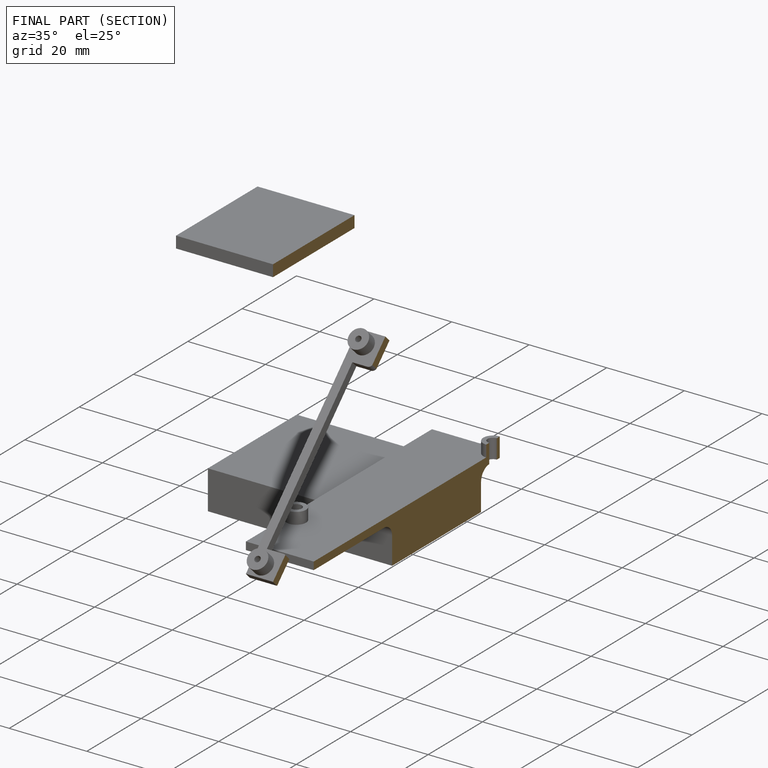
[diagram: finished part — half-section view (interior)]
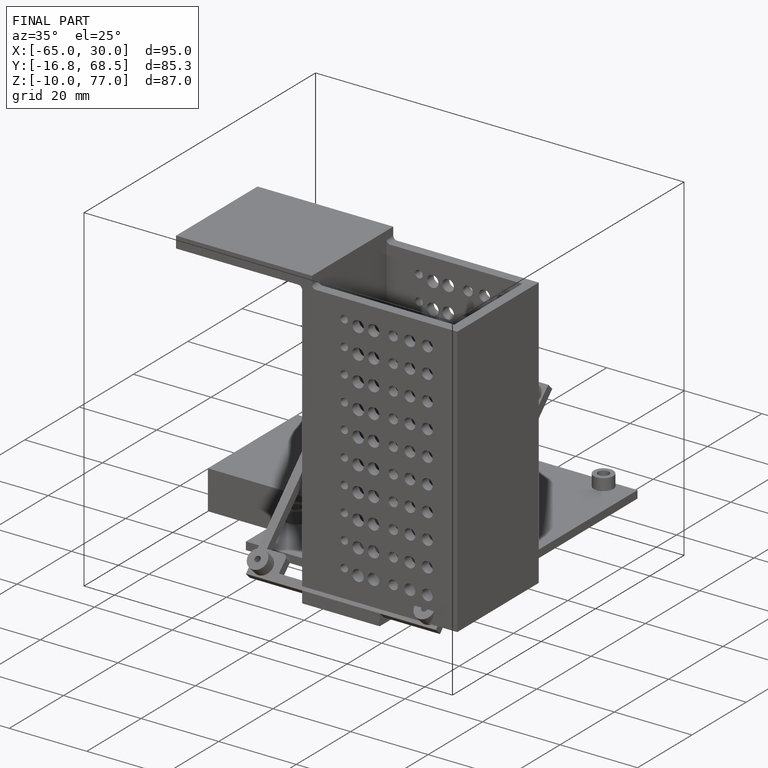
[diagram: finished part — iso view with bounding-box wireframe]
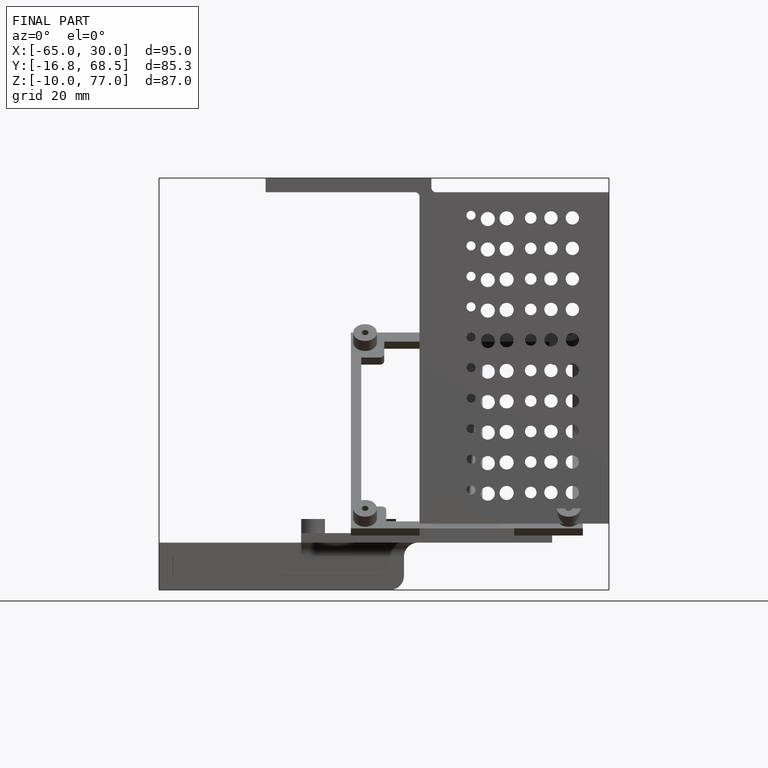
[diagram: finished part — front view with bounding-box wireframe]
